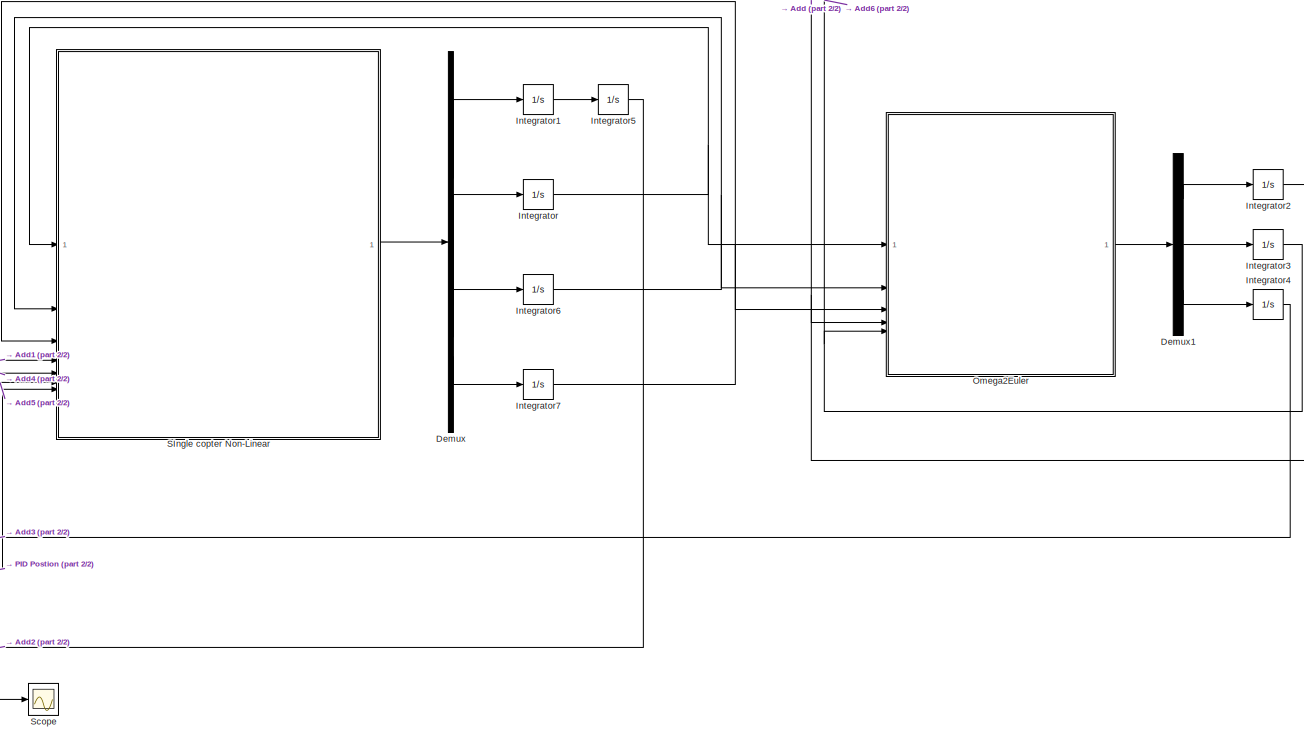
[diagram: root canvas - part 1/2, center side, full height]
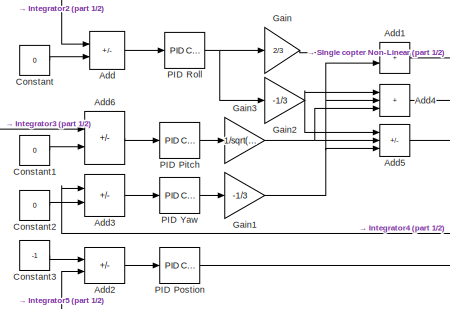
[diagram: root canvas - part 2/2, middle left region]
MODEL slx_ce8ba66a6b0c
KIND model
CONFIG AbsTol = auto
CONFIG EnableMultiTasking = off
CONFIG FixedStep = auto
CONFIG MaxStep = auto
CONFIG MinStep = auto
CONFIG RelTol = 1e-3
CONFIG SampleTimeConstraint = Unconstrained
CONFIG SolverName = VariableStepAuto
CONFIG StartTime = 0.0
CONFIG StopTime = 100
BLOCK [Sum] Add
  IconShape = rectangular
  Inputs = +-
BLOCK [Sum] Add1
  IconShape = rectangular
BLOCK [Sum] Add2
  IconShape = rectangular
  Inputs = -+
BLOCK [Sum] Add3
  IconShape = rectangular
  Inputs = +-
BLOCK [Sum] Add4
  IconShape = rectangular
  Inputs = +++
BLOCK [Sum] Add5
  IconShape = rectangular
  Inputs = +-+
BLOCK [Sum] Add6
  IconShape = rectangular
  Inputs = +-
BLOCK [Constant] Constant
  Value = 0
BLOCK [Constant] Constant1
  Value = 0
BLOCK [Constant] Constant2
  Value = 0
BLOCK [Constant] Constant3
  Value = -1
BLOCK [Demux] Demux
BLOCK [Demux] Demux1
  Outputs = 3
BLOCK [Gain] Gain
  Gain = 2/3
BLOCK [Gain] Gain1
  Gain = -1/3
BLOCK [Gain] Gain2
  Gain = -1/3
BLOCK [Gain] Gain3
  Gain = 1/sqrt(3)
BLOCK [Integrator] Integrator
BLOCK [Integrator] Integrator1
BLOCK [Integrator] Integrator2
BLOCK [Integrator] Integrator3
BLOCK [Integrator] Integrator4
BLOCK [Integrator] Integrator5
BLOCK [Integrator] Integrator6
BLOCK [Integrator] Integrator7
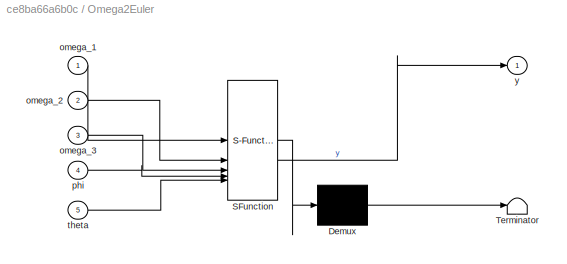
BLOCK [SubSystem] Omega2Euler
  ErrorFcn = Stateflow.Translate.translate
  PermitHierarchicalResolution = ExplicitOnly
  SFBlockType = MATLAB Function
  TreatAsAtomicUnit = on
BLOCK [Demux] Omega2Euler/ Demux 
  Outputs = 1
BLOCK [S-Function] Omega2Euler/ SFunction 
  EnableBusSupport = on
  FunctionName = sf_sfun
  PortCounts = [5 2]
  SFcnIsStateOwnerBlock = off
  SFunctionDeploymentMode = off
  Tag = Stateflow S-Function 1
BLOCK [Terminator] Omega2Euler/ Terminator 
BLOCK [Inport] Omega2Euler/omega_1
BLOCK [Inport] Omega2Euler/omega_2
  Port = 2
BLOCK [Inport] Omega2Euler/omega_3
  Port = 3
BLOCK [Inport] Omega2Euler/phi
  Port = 4
BLOCK [Inport] Omega2Euler/theta
  Port = 5
BLOCK [Outport] Omega2Euler/y
  VectorParamsAs1DForOutWhenUnconnected = off
BLOCK [Reference] PID Pitch  REF=slpidlib/PID Controller
  LibrarySourceBlock = simulink/Continuous/PID Controller
  SourceBlock = slpidlib/PID Controller
  SourceType = PID 1dof
BLOCK [Reference] PID Postion  REF=slpidlib/PID Controller
  LibrarySourceBlock = simulink/Continuous/PID Controller
  SourceBlock = slpidlib/PID Controller
  SourceType = PID 1dof
BLOCK [Reference] PID Roll  REF=slpidlib/PID Controller
  LibrarySourceBlock = simulink/Continuous/PID Controller
  SourceBlock = slpidlib/PID Controller
  SourceType = PID 1dof
BLOCK [Reference] PID Yaw  REF=slpidlib/PID Controller
  LibrarySourceBlock = simulink/Continuous/PID Controller
  SourceBlock = slpidlib/PID Controller
  SourceType = PID 1dof
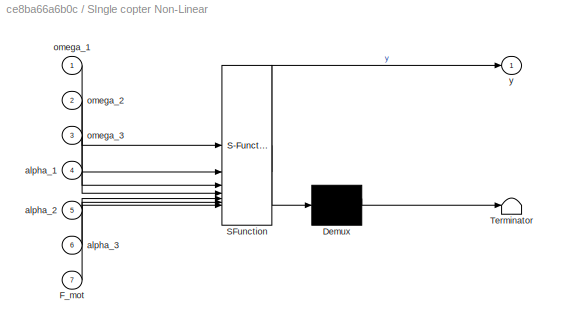
BLOCK [SubSystem] SIngle copter Non-Linear
  ErrorFcn = Stateflow.Translate.translate
  PermitHierarchicalResolution = ExplicitOnly
  SFBlockType = MATLAB Function
  TreatAsAtomicUnit = on
BLOCK [Demux] SIngle copter Non-Linear/ Demux 
  Outputs = 1
BLOCK [S-Function] SIngle copter Non-Linear/ SFunction 
  EnableBusSupport = on
  FunctionName = sf_sfun
  PortCounts = [7 2]
  SFcnIsStateOwnerBlock = off
  SFunctionDeploymentMode = off
  Tag = Stateflow S-Function 2
BLOCK [Terminator] SIngle copter Non-Linear/ Terminator 
BLOCK [Inport] SIngle copter Non-Linear/F_mot
  Port = 7
BLOCK [Inport] SIngle copter Non-Linear/alpha_1
  Port = 4
BLOCK [Inport] SIngle copter Non-Linear/alpha_2
  Port = 5
BLOCK [Inport] SIngle copter Non-Linear/alpha_3
  Port = 6
BLOCK [Inport] SIngle copter Non-Linear/omega_1
BLOCK [Inport] SIngle copter Non-Linear/omega_2
  Port = 2
BLOCK [Inport] SIngle copter Non-Linear/omega_3
  Port = 3
BLOCK [Outport] SIngle copter Non-Linear/y
  VectorParamsAs1DForOutWhenUnconnected = off
BLOCK [Scope] Scope
  Floating = off
  NumInputPorts = 1
  ScopeSpecificationString = Simulink.scopes.TimeScopeBlockCfg('CurrentConfiguration', extmgr.ConfigurationSet(extmgr.Configuration('Core','General UI',true),extmgr.Configuration('Core','Source UI',true),extmgr.Configuration('Sources','WiredSimulink',true),extmgr.Configuration('Visuals','Time Domain',true,'SerializedDisplays',{struct('MinYLimReal','-2.29576','MaxYLimReal','10.65745','YLabelReal','','MinYLimMag','0.00000','Max...<+1390ch>
LINE Add1:1 -> SIngle copter Non-Linear:4
LINE Add2:1 -> PID Postion:1
LINE Add3:1 -> PID Yaw:1
LINE Add4:1 -> SIngle copter Non-Linear:5
LINE Add5:1 -> SIngle copter Non-Linear:6
LINE Add6:1 -> PID Pitch:1
LINE Add:1 -> PID Roll:1
LINE Constant1:1 -> Add6:2
LINE Constant2:1 -> Add3:2
LINE Constant3:1 -> Add2:1
LINE Constant:1 -> Add:2
LINE Demux1:1 -> Integrator2:1
LINE Demux1:2 -> Integrator3:1
LINE Demux1:3 -> Integrator4:1
LINE Demux:1 -> Integrator1:1
LINE Demux:2 -> Integrator:1
LINE Demux:3 -> Integrator6:1
LINE Demux:4 -> Integrator7:1
NET Gain1:1 -> Add1:2, Add4:2, Add5:3
NET Gain2:1 -> Add4:1, Add5:1
NET Gain3:1 -> Add4:3, Add5:2
LINE Gain:1 -> Add1:1
LINE Integrator1:1 -> Integrator5:1
NET Integrator2:1 -> Add:1, Omega2Euler:4
NET Integrator3:1 -> Add6:1, Omega2Euler:5
LINE Integrator4:1 -> Add3:1
NET Integrator5:1 -> Add2:2, Scope:1
NET Integrator6:1 -> Omega2Euler:2, SIngle copter Non-Linear:2
NET Integrator7:1 -> Omega2Euler:3, SIngle copter Non-Linear:3
NET Integrator:1 -> Omega2Euler:1, SIngle copter Non-Linear:1
LINE Omega2Euler:1 -> Demux1:1
LINE PID Pitch:1 -> Gain3:1
LINE PID Postion:1 -> SIngle copter Non-Linear:7
NET PID Roll:1 -> Gain2:1, Gain:1
LINE PID Yaw:1 -> Gain1:1
LINE SIngle copter Non-Linear:1 -> Demux:1
note: NET lines group one-source signal fan-out (src -> all destinations, sorted); 1:1 wires keep LINE
CHART Omega2Euler states=1 transitions=1
  STATE_LABEL 'eML_blk_kernel()'
  STATE_LABEL 'SCRIPT:\nfunction y = omega2euler(omega_1, omega_2, omega_3, phi, theta)\n\ndelta = 1e-5;\ny = [1 (sin(phi)*sin(theta))/(cos(theta)+delta) (cos(phi)*sin(theta))/(cos(theta)+delta);\n     0                         cos(phi)                        -sin(phi);\n     0              sin(phi)/(cos(theta)+delta)             cos(phi)/(cos(theta)+delta)]*[omega_1; omega_2; omega_3];\n\n\n\nend\n'
CHART SIngle copter Non-Linear states=1 transitions=1
  STATE_LABEL 'eML_blk_kernel()'
  STATE_LABEL 'SCRIPT:\nfunction y = SC(omega_1, omega_2, omega_3, alpha_1, alpha_2, alpha_3, F_mot)\n\n%constants\nrho = 1.2;\ncl  = 0.008905;\nA   = 0.01;\nu   = 1;\nc0  = 0.001054;\nc2  = c0*1e-3;\n\n%body constants\nM   = 0.5;\nh   = 0.1;   \ne   = 0.05;  % creo que vos lo llamas r en tus cuentas, es la distancia entre el eje z y el centro del aspa\ng   = 9.81;\nI1  =0.01;\nI2  = 0.01;\nI3  = 0.05;\n\nL1 = 0.5*rho*cl*A*u^2*sin(...<+808ch>'
CHART  states=0 transitions=0
CHART  states=0 transitions=0
